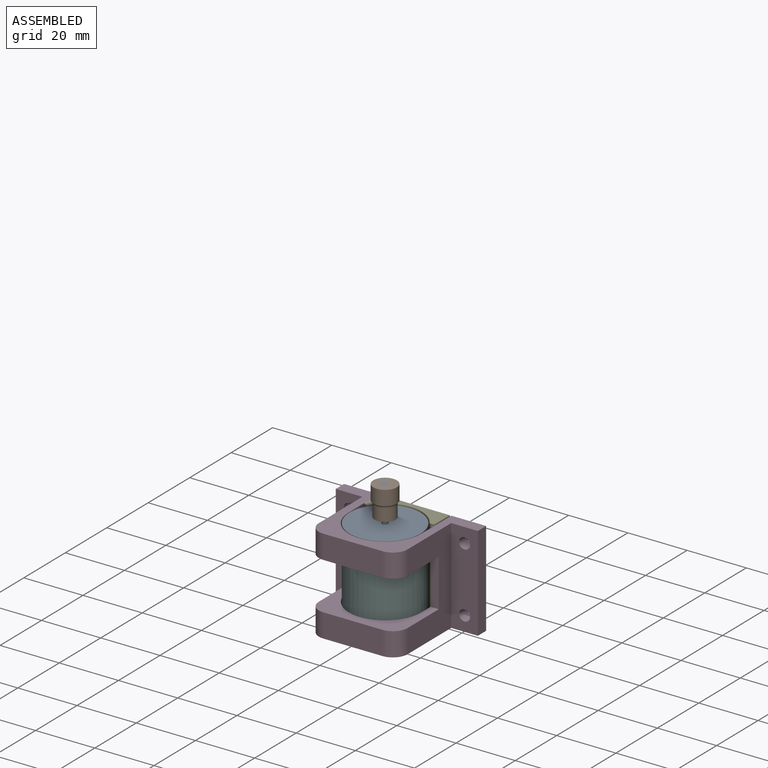
[diagram: assembled view]
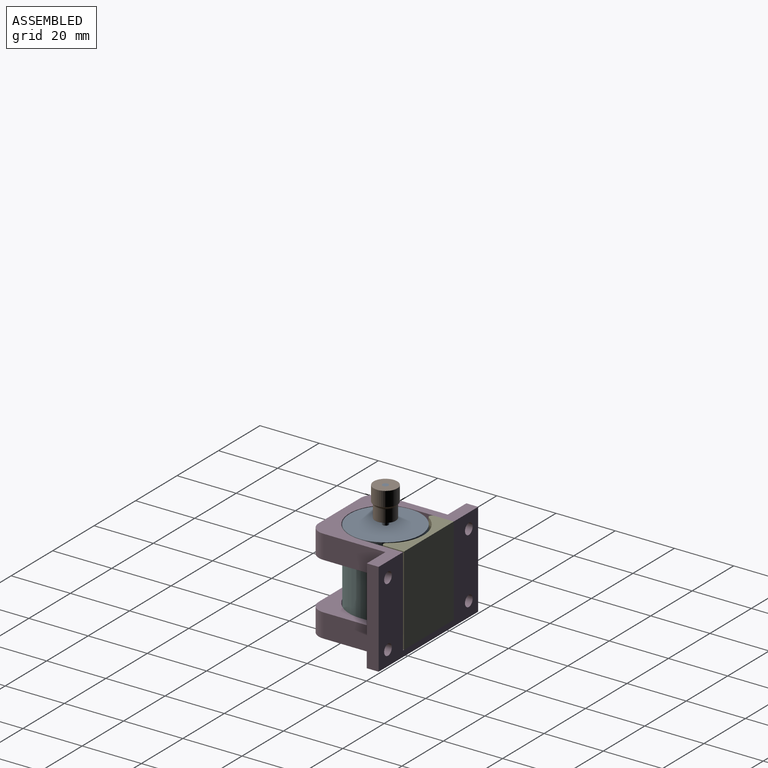
[diagram: assembled view, second angle]
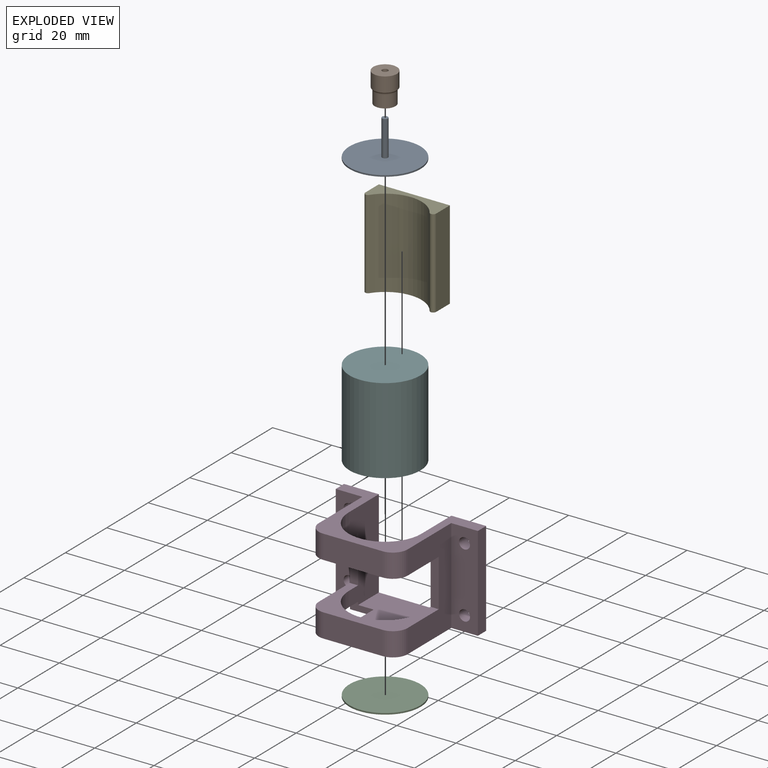
[diagram: exploded view]
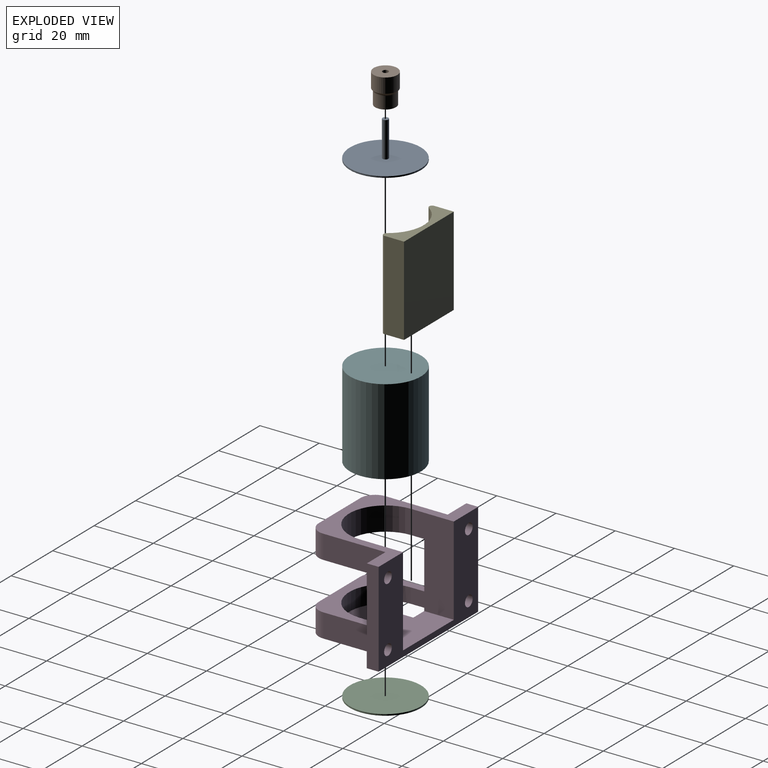
[diagram: exploded view, second angle]
ASSEMBLY  parts=6 mates=12
PART A: 5 faces, bbox 24x24x12.5 mm
  f0: cylinder r=12mm len=24mm, axis (0,0,-1), area 37.7mm2, adj f1,f2
  f1: plane 24x24mm, normal (0,0,1), area 449.2mm2, adj f0,f3
  f2: plane 24x24mm, normal (0,0,-1), area 452.4mm2, adj f0
  f3: cylinder r=1mm len=12mm, axis (0,0,-1), area 75.4mm2, adj f1,f4
  f4: plane 2x2mm, normal (0,0,1), area 3.1mm2, adj f3
PART B: 6 faces, bbox 9.7x9.7x10 mm
  f0: cylinder r=3.5mm len=7mm, axis (0,0,-1), area 90.9mm2, adj f1,f4
  f1: plane 7x7mm, normal (0,0,-1), area 35.3mm2, adj f0,f5
  f2: cylinder r=4mm len=8mm, axis (0,0,-1), area 125.7mm2, adj f3,f4
  f3: plane 8x8mm, normal (0,0,1), area 47.1mm2, adj f2,f5
  f4: torus R=4.5mm, axis (0,0,1), area 24.2mm2, adj f0,f2
  f5: cylinder r=1mm len=10mm, axis (0,0,1), area 62.8mm2, adj f1,f3
PART C: 3 faces, bbox 24x24x0.5 mm
  f0: cylinder r=12mm len=24mm, axis (0,0,-1), area 37.7mm2, adj f1,f2
  f1: plane 24x24mm, normal (0,0,1), area 452.4mm2, adj f0
  f2: plane 24x24mm, normal (0,0,-1), area 452.4mm2, adj f0
PART D: 32 faces, bbox 48x32x30 mm
  f0: plane 30x14.5mm, normal (1,0,0), area 358.5mm2, adj f2,f4,f10,f14,f15,f24,f26,f27
  f1: plane 48x30mm, normal (0,1,0), area 881.3mm2, adj f3,f6,f7,f11,f12,f14,f16,f17
  f2: plane 26.75x24.5mm, normal (0,-1,0), area 540.8mm2, adj f0,f5,f14,f15,f29,f30,f31
  f3: plane 20x8mm, normal (0,0,-1), area 160mm2, adj f1,f18,f19,f27
  f4: cylinder r=12.25mm len=24.5mm, axis (0,-1,0), area 307.9mm2, adj f0,f5,f10,f26
  f5: plane 30x14.5mm, normal (-1,0,0), area 363mm2, adj f2,f4,f10,f14,f15,f25,f26,f27
  f6: plane 32x21mm, normal (1,0,0), area 432mm2, adj f1,f8,f10,f16,f18,f25,f26,f27
  f7: plane 32x21mm, normal (-1,0,0), area 402mm2, adj f1,f9,f10,f17,f19,f24,f26,f27
  f8: cylinder r=5mm len=8mm, axis (0,1,0), area 62.8mm2, adj f6,f10,f13,f26
  f9: cylinder r=5mm len=8mm, axis (0,-1,0), area 62.8mm2, adj f7,f10,f13,f26
  f10: plane 48x30mm, normal (0,-1,0), area 370.3mm2, adj f0,f4,f5,f6,f7,f8,f9,f11
  f11: plane 32x4mm, normal (-1,0,0), area 128mm2, adj f1,f10,f14,f17
  f12: plane 32x4mm, normal (1,0,0), area 128mm2, adj f1,f10,f14,f16
  f13: plane 20x8mm, normal (0,0,-1), area 160mm2, adj f8,f9,f10,f26
  f14: plane 48x32mm, normal (0,0,1), area 758mm2, adj f0,f1,f2,f5,f10,f11,f12,f20
  f15: cylinder r=12.25mm len=24.5mm, axis (0,-1,0), area 225.2mm2, adj f0,f2,f5,f27,f28,f30
  f16: plane 32x9mm, normal (0,0,-1), area 266.5mm2, adj f1,f6,f10,f12,f22,f23
  f17: plane 32x9mm, normal (0,0,-1), area 266.5mm2, adj f1,f7,f10,f11,f20,f21
  f18: cylinder r=5mm len=8mm, axis (0,1,0), area 62.8mm2, adj f1,f3,f6,f27
  f19: cylinder r=5mm len=8mm, axis (0,-1,0), area 62.8mm2, adj f1,f3,f7,f27
  f20: cylinder r=1.85mm len=4mm, axis (0,0,-1), area 46.5mm2, adj f14,f17
  f21: cylinder r=1.85mm len=4mm, axis (0,0,-1), area 46.5mm2, adj f14,f17
  f22: cylinder r=1.85mm len=4mm, axis (0,0,-1), area 46.5mm2, adj f14,f16
  f23: cylinder r=1.85mm len=4mm, axis (0,0,-1), area 46.5mm2, adj f14,f16
  f24: plane 16x2.75mm, normal (0,0,-1), area 44mm2, adj f0,f7,f26,f27
  f25: plane 16x2.75mm, normal (0,0,-1), area 44mm2, adj f5,f6,f26,f27
  f26: plane 30x20mm, normal (0,1,0), area 243.3mm2, adj f0,f4,f5,f6,f7,f8,f9,f13
  f27: plane 30x20mm, normal (0,-1,0), area 243.3mm2, adj f0,f3,f5,f6,f7,f15,f18,f19
  f28: plane 10x4.05mm, normal (0,1,0), area 29.8mm2, adj f0,f7,f15,f29,f30
  f29: plane 8x3mm, normal (0,0,-1), area 18.8mm2, adj f0,f1,f2,f7,f28,f31
  f30: plane 8x3mm, normal (0,0,1), area 20.1mm2, adj f1,f2,f7,f15,f28,f31
  f31: plane 10x2mm, normal (-1,0,0), area 20mm2, adj f1,f2,f29,f30
PART E: 8 faces, bbox 24x30x7.6 mm
  f0: plane 24x7.61mm, normal (0,-1,0), area 95.5mm2, adj f2,f3,f4,f5,f6,f7
  f1: plane 24x7.61mm, normal (0,1,0), area 95.5mm2, adj f2,f3,f4,f5,f6,f7
  f2: plane 30x6.61mm, normal (-1,0,0), area 198.4mm2, adj f0,f1,f4,f6
  f3: plane 30x6.61mm, normal (1,0,0), area 198.4mm2, adj f0,f1,f4,f7
  f4: plane 30x24mm, normal (0,0,-1), area 720mm2, adj f0,f1,f2,f3
  f5: cylinder r=12.25mm len=30mm, axis (0,-1,0), area 719.9mm2, adj f0,f1,f6,f7
  f6: cylinder r=1mm len=30mm, axis (0,-1,0), area 76.5mm2, adj f0,f1,f2,f5
  f7: cylinder r=1mm len=30mm, axis (0,-1,0), area 76.5mm2, adj f0,f1,f3,f5
PART F: 3 faces, bbox 24x24x29 mm
  f0: cylinder r=12mm len=29mm, axis (0,0,-1), area 2186.5mm2, adj f1,f2
  f1: plane 24x24mm, normal (0,0,1), area 452.4mm2, adj f0
  f2: plane 24x24mm, normal (0,0,-1), area 452.4mm2, adj f0
PLACE A t=(7.73,-28.14,7.23)mm
PLACE B t=(7.73,-28.14,39.23)mm
PLACE C t=(7.73,-28.14,7.23)mm
PLACE D rot(axis=(-1,0,0),90deg) t=(-16.27,-43.64,37.23)mm
PLACE E rot(axis=(1,0,0),90deg) t=(-4.52,-13.64,7.23)mm
PLACE F t=(7.73,-28.14,7.23)mm
MATE planar B.f2 <-> A.f3  axis (0,0,1) through (7.73,-28.14,49.23)mm
MATE planar F.f0 <-> C.f0  axis (0,0,-1) through (7.73,-28.14,7.73)mm
MATE planar F.f0 <-> A.f0  axis (0,0,1) through (7.73,-28.14,36.73)mm
MATE planar E.f0 <-> C.f0  axis (0,0,-1) through (-4.52,-16.95,7.23)mm
MATE planar D.f0 <-> E.f2  axis (1,0,0) through (-4.52,-19.82,22.62)mm
MATE planar D.f2 <-> C.f0  axis (0,0,1) through (8.61,-25.61,7.23)mm
MATE cylindrical C.f0 <-> F.f0  axis (0,0,-1) through (7.73,-28.14,7.23)mm
MATE planar C.f0 <-> D.f2  axis (0,0,-1) through (7.73,-28.14,7.23)mm
MATE planar D.f14 <-> E.f4  axis (0,1,0) through (7.73,-13.64,20.26)mm
MATE cylindrical A.f0 <-> F.f0  axis (0,0,1) through (7.73,-28.14,37.23)mm
MATE cylindrical B.f2 <-> A.f3  axis (0,0,1) through (7.73,-28.14,49.23)mm
MATE cylindrical D.f4 <-> F.f0  axis (0,0,1) through (7.73,-28.14,33.23)mm
